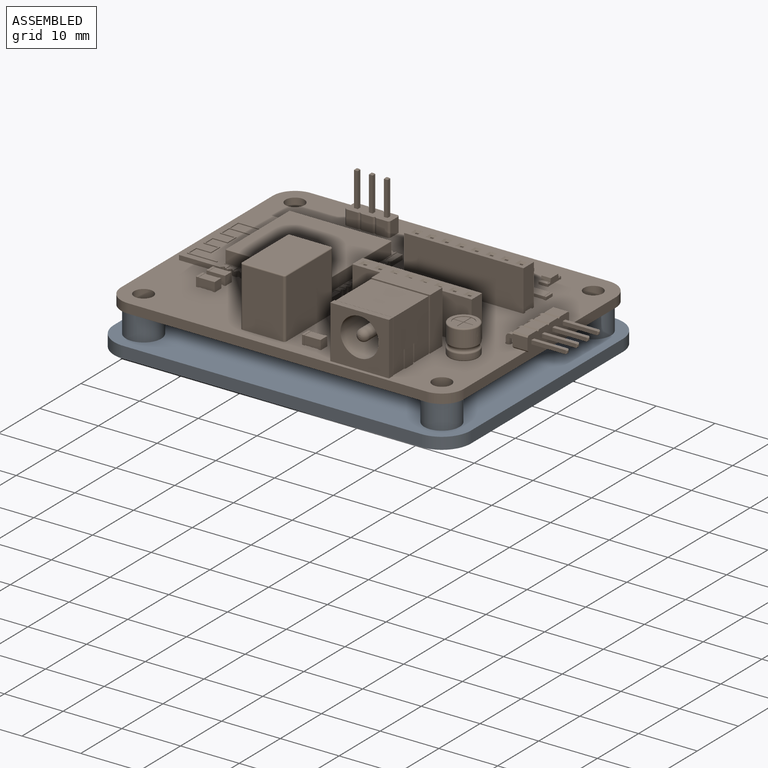
[diagram: assembled view]
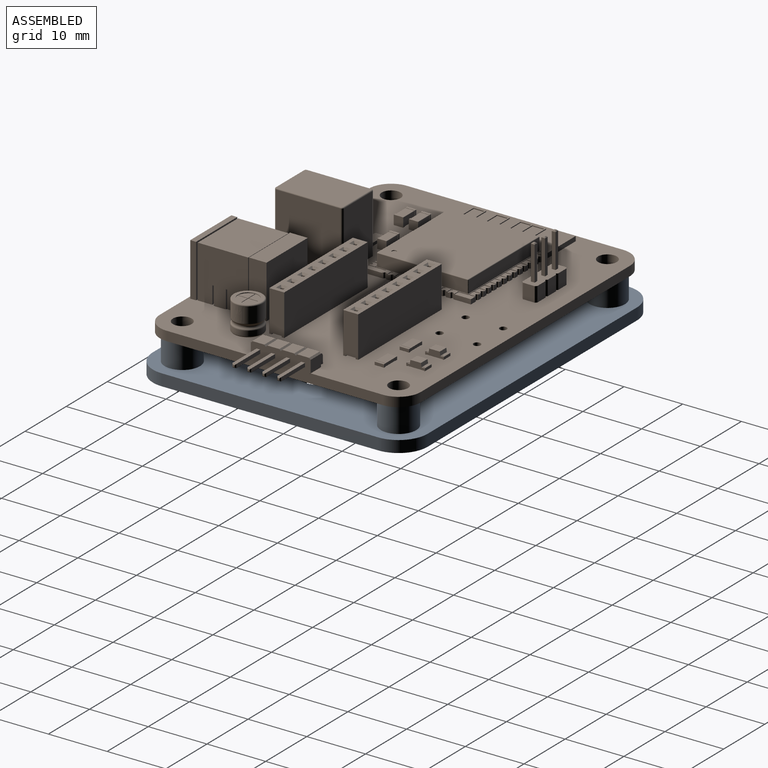
[diagram: assembled view, second angle]
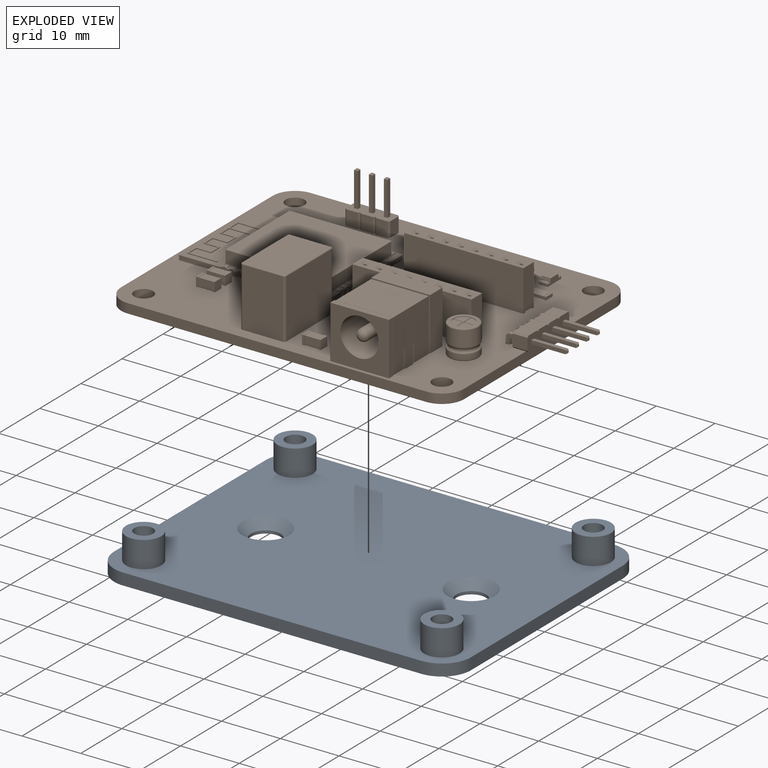
[diagram: exploded view]
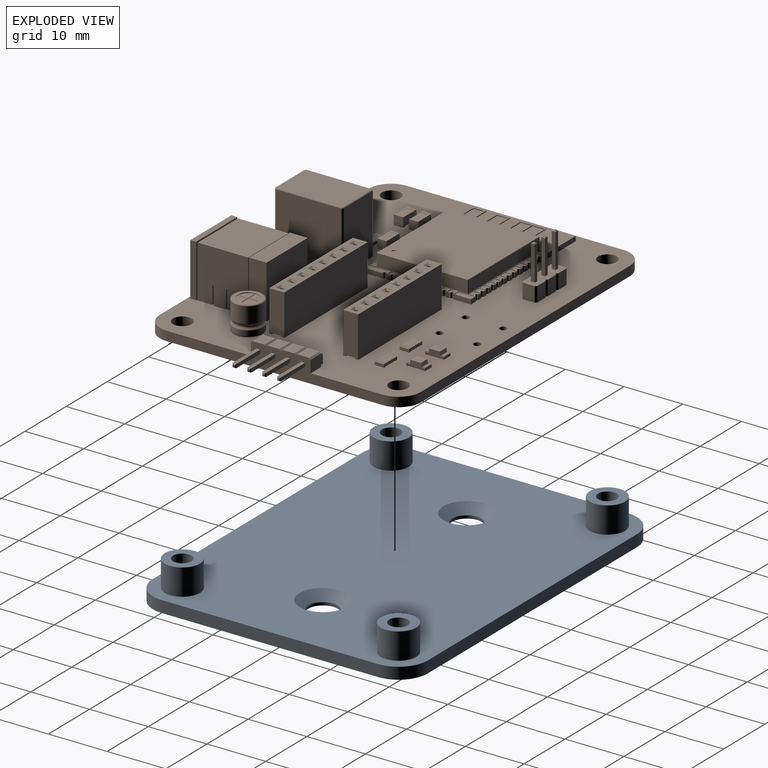
[diagram: exploded view, second angle]
FCSTD DOCUMENT  (FreeCAD 0.20RUnknown)
Label: pcb mount
License: All rights reserved
LicenseURL: http://en.wikipedia.org/wiki/All_rights_reserved
objects: Part::Feature×12, App::Part×11, App::Link×8, PartDesign::SubShapeBinder×2, Sketcher::SketchObject×2, PartDesign::Pad×2, Part::Compound2×1, PartDesign::Chamfer×1, PartDesign::Body×1
note: 26 computed .brp shape members not serialized (recipe doc carries the construction recipe); baked Part::Feature solids carry a one-line shape summary decoded from their .brp

FEATURE [Part::Feature] Solid  label="SOLID"
  TreeRank = 15
  shape: bbox 2.54 x 20.32 x 10.1 mm, 258 faces (baked)
FEATURE [App::Part] Part  label="PinSocket_1x08_P2.54mm_Vertical"
  ExportMode = 1
  Group = -> [Solid]
  Origin = -> Origin
  Placement = pos=(2.794,-4.826,1.65) rot=(0,0,1;1.5708rad)
  TreeRank = 17
  _ExportChildren = -> [Solid]
  _GroupVersion = 1
FEATURE [App::Link] Link  label="PinSocket_1x08_P2.54mm_Vertical"
  AutoLinkLabel = true
  AutoPlacement = true
  LinkPlacement = pos=(2.794,7.774,1.65) rot=(0,0,1;1.5708rad)
  LinkedObject = -> Part
  Placement = pos=(2.794,7.774,1.65) rot=(0,0,1;1.5708rad)
  SyncGroupVisibility = false
  TreeRank = 18
  _LinkVersion = 1
FEATURE [Part::Feature] Solid001  label="SOLID"
  TreeRank = 19
  shape: bbox 3.2 x 1.6 x 1.6 mm, 28 faces (baked)
FEATURE [App::Part] Part001  label="C_1206_3216Metric"
  ExportMode = 1
  Group = -> [Solid001]
  Origin = -> Origin001
  Placement = pos=(4.0009,-18.806,1.65) rot=(0,0,1;0rad)
  TreeRank = 21
  _ExportChildren = -> [Solid001]
  _GroupVersion = 1
FEATURE [Part::Feature] Solid002  label="SOLID"
  TreeRank = 22
  shape: bbox 3.2 x 1.6 x 0.55 mm, 26 faces (baked)
FEATURE [App::Part] Part002  label="R_1206_3216Metric"
  ExportMode = 1
  Group = -> [Solid002]
  Origin = -> Origin002
  Placement = pos=(20.32,12.69,1.65) rot=(0,0,1;0rad)
  TreeRank = 24
  _ExportChildren = -> [Solid002]
  _GroupVersion = 1
FEATURE [App::Link] Link001  label="C_1206_3216Metric"
  AutoLinkLabel = true
  AutoPlacement = true
  LinkPlacement = pos=(4.1025,-10.17,1.65) rot=(0,0,1;3.14159rad)
  LinkedObject = -> Part001
  Placement = pos=(4.1025,-10.17,1.65) rot=(0,0,1;3.14159rad)
  SyncGroupVisibility = false
  TreeRank = 25
  _LinkVersion = 1
FEATURE [Part::Feature] Solid003  label="Unnamed"
  TreeRank = 26
  shape: bbox 9.8 x 8.6 x 11.9 mm, 54 faces (baked)
FEATURE [Part::Feature] Solid004  label="Unnamed"
  TreeRank = 27
  shape: bbox 11.5 x 13 x 13.63 mm, 42 faces (baked)
FEATURE [Part::Compound2] Compound  label="COMPOUND"
  Links = -> [Solid003,Solid004]
  TreeRank = 28
FEATURE [App::Part] Part003  label="BarrelJack_CUI_PJ-063AH_Horizontal"
  ExportMode = 1
  Group = -> [Compound,Solid003,Solid004]
  Origin = -> Origin003
  Placement = pos=(13.716,-9.75,1.65) rot=(0,0,1;0rad)
  TreeRank = 36
  _ExportChildren = -> [Compound]
  _GroupVersion = 1
FEATURE [Part::Feature] Solid005  label="SOLID"
  TreeRank = 37
  shape: bbox 18 x 25.5 x 3.1 mm, 751 faces (baked)
FEATURE [App::Part] Part004  label="ESP32-WROOM-32"
  ExportMode = 1
  Group = -> [Solid005]
  Origin = -> Origin004
  Placement = pos=(-11.9196,2.4378,1.65) rot=(0,0,1;1.5708rad)
  TreeRank = 39
  _ExportChildren = -> [Solid005]
  _GroupVersion = 1
FEATURE [App::Link] Link002  label="C_1206_3216Metric"
  AutoLinkLabel = true
  AutoPlacement = true
  LinkPlacement = pos=(-19.0754,-9.0778,1.65) rot=(0,0,1;3.14159rad)
  LinkedObject = -> Part001
  Placement = pos=(-19.0754,-9.0778,1.65) rot=(0,0,1;3.14159rad)
  SyncGroupVisibility = false
  TreeRank = 40
  _LinkVersion = 1
FEATURE [Part::Feature] Solid006  label="SOLID"
  TreeRank = 64
  shape: bbox 3.2 x 1.6 x 1.1 mm, 50 faces (baked)
FEATURE [App::Part] Part005  label="LED_1206_3216Metric"
  ExportMode = 1
  Group = -> [Solid006]
  Origin = -> Origin005
  Placement = pos=(18.796,17.262,1.65) rot=(0,0,-1;1.5708rad)
  TreeRank = 66
  _ExportChildren = -> [Solid006]
  _GroupVersion = 1
FEATURE [Part::Feature] Solid007  label="SOLID"
  TreeRank = 67
  shape: bbox 7.112 x 7.934 x 7 mm, 49 faces (baked)
FEATURE [App::Part] Part006  label="CP_Radial_D5.0mm_P2.50mm"
  ExportMode = 1
  Group = -> [Solid007]
  Origin = -> Origin006
  Placement = pos=(21.376,-9.154,1.65) rot=(0,0,1;0rad)
  TreeRank = 69
  _ExportChildren = -> [Solid007]
  _GroupVersion = 1
FEATURE [App::Link] Link003  label="LED_1206_3216Metric"
  AutoLinkLabel = true
  AutoPlacement = true
  LinkPlacement = pos=(14.224,17.262,1.65) rot=(0,0,-1;1.5708rad)
  LinkedObject = -> Part005
  Placement = pos=(14.224,17.262,1.65) rot=(0,0,-1;1.5708rad)
  SyncGroupVisibility = false
  TreeRank = 70
  _LinkVersion = 1
FEATURE [Part::Feature] Solid008  label="SOLID"
  TreeRank = 71
  shape: bbox 2.54 x 7.62 x 11.54 mm, 76 faces (baked)
FEATURE [App::Part] Part007  label="PinHeader_1x03_P2.54mm_Vertical"
  ExportMode = 1
  Group = -> [Solid008]
  Origin = -> Origin007
  Placement = pos=(-14.097,17.389,1.65) rot=(0,0,1;1.5708rad)
  TreeRank = 73
  _ExportChildren = -> [Solid008]
  _GroupVersion = 1
FEATURE [App::Link] Link004  label="C_1206_3216Metric"
  AutoLinkLabel = true
  AutoPlacement = true
  LinkPlacement = pos=(-19.0754,-11.6178,1.65) rot=(0,0,1;3.14159rad)
  LinkedObject = -> Part001
  Placement = pos=(-19.0754,-11.6178,1.65) rot=(0,0,1;3.14159rad)
  SyncGroupVisibility = false
  TreeRank = 74
  _LinkVersion = 1
FEATURE [App::Link] Link005  label="R_1206_3216Metric"
  AutoLinkLabel = true
  AutoPlacement = true
  LinkPlacement = pos=(14.224,12.69,1.65) rot=(0,0,1;0rad)
  LinkedObject = -> Part002
  Placement = pos=(14.224,12.69,1.65) rot=(0,0,1;0rad)
  SyncGroupVisibility = false
  TreeRank = 75
  _LinkVersion = 1
FEATURE [App::Link] Link006  label="R_1206_3216Metric"
  AutoLinkLabel = true
  AutoPlacement = true
  LinkPlacement = pos=(-11.303,-11.567,1.65) rot=(0,0,1;3.14159rad)
  LinkedObject = -> Part002
  Placement = pos=(-11.303,-11.567,1.65) rot=(0,0,1;3.14159rad)
  SyncGroupVisibility = false
  TreeRank = 76
  _LinkVersion = 1
FEATURE [Part::Feature] Solid009  label="SOLID"
  TreeRank = 77
  shape: bbox 10.36 x 10.16 x 5.54 mm, 112 faces (baked)
FEATURE [App::Part] Part008  label="PinHeader_1x04_P2.54mm_Horizontal"
  ExportMode = 1
  Group = -> [Solid009]
  Origin = -> Origin008
  Placement = pos=(25.6503,5.1641,1.65) rot=(0,0,1;0rad)
  TreeRank = 79
  _ExportChildren = -> [Solid009]
  _GroupVersion = 1
FEATURE [Part::Feature] Solid010  label="SOLID"
  TreeRank = 80
  shape: bbox 11.7 x 7.6 x 14.2 mm, 27 faces (baked)
FEATURE [App::Part] Part009  label="Converter_DCDC_TRACO_TSR-1_THT"
  ExportMode = 1
  Group = -> [Solid010]
  Origin = -> Origin009
  Placement = pos=(-1.8735,-17.1999,1.65) rot=(0,0,1;1.5708rad)
  TreeRank = 82
  _ExportChildren = -> [Solid010]
  _GroupVersion = 1
FEATURE [App::Link] Link007  label="C_1206_3216Metric"
  AutoLinkLabel = true
  AutoPlacement = true
  LinkPlacement = pos=(-11.303,-9.027,1.65) rot=(0,0,1;0rad)
  LinkedObject = -> Part001
  Placement = pos=(-11.303,-9.027,1.65) rot=(0,0,1;0rad)
  SyncGroupVisibility = false
  TreeRank = 83
  _LinkVersion = 1
FEATURE [Part::Feature] Solid011  label="pcb PCB"
  TreeRank = 84
  shape: bbox 58.42 x 44.45 x 1.6 mm, 63 faces (baked)
FEATURE [App::Part] Part010  label="pcb 1"
  ExportMode = 1
  Group = -> [Part,Link,Part001,Part002,Link001,Part003,Part004,Link002,Part005,Part006,Link003,Part007,Link004,Link005,Link006,Part008,Part009,Link007,Solid011]
  Origin = -> Origin010
  Placement = pos=(0,0,6.5) rot=(0,0,1;0rad)
  TreeRank = 86
  _ExportChildren = -> [Part,Link,Part001,Part002,Link001,Part003,Part004,Link002,Part005,Part006,Link003,Part007,Link004,Link005,Link006,Part008,Part009,Link007,Solid011]
  _GroupVersion = 1
FEATURE [PartDesign::SubShapeBinder] Binder  label="Binder(pcb PCB)..."
  BindCopyOnChange = 0
  BindMode = 0
  ClaimChildren = false
  Context = -> Body [Binder.]
  FillStyle = 0
  Fuse = false
  MakeFace = true
  PartialLoad = false
  Relative = true
  Support = -> [Part010[Solid011.Edge16,Solid011.Edge33,Solid011.Edge50,Solid011.Edge68]]
  TreeRank = 98
  _Version = 8
FEATURE [Sketcher::SketchObject] Sketch
  ExternalGeometry = -> [Binder]
  FullyConstrained = false
  MapMode = 5
  Support = -> [XY_Plane]
  TreeRank = 97
  sketch-geometry (12):
    g0: ArcOfCircle CenterX=-25.4 CenterY=18.415 CenterZ=0 NormalX=0 NormalY=0 NormalZ=1 AngleXU=0 Radius=5 StartAngle=1.5708 EndAngle=3.14159
    g1: LineSegment StartX=-25.4 StartY=23.415 StartZ=0 EndX=25.4 EndY=23.415 EndZ=0
    g2: ArcOfCircle CenterX=25.4 CenterY=18.415 CenterZ=0 NormalX=0 NormalY=0 NormalZ=1 AngleXU=0 Radius=5 StartAngle=0 EndAngle=1.5708
    g3: ArcOfCircle CenterX=25.4 CenterY=-18.415 CenterZ=0 NormalX=0 NormalY=0 NormalZ=1 AngleXU=0 Radius=5 StartAngle=4.71239 EndAngle=6.28319
    g4: LineSegment StartX=25.4 StartY=-23.415 StartZ=0 EndX=-25.4 EndY=-23.415 EndZ=0
    g5: ArcOfCircle CenterX=-25.4 CenterY=-18.415 CenterZ=0 NormalX=0 NormalY=0 NormalZ=1 AngleXU=0 Radius=5 StartAngle=3.14159 EndAngle=4.71239
    g6: GeomPoint [constr] X=-30.4 Y=23.415 Z=0
    g7: GeomPoint [constr] X=30.4 Y=-23.415 Z=0
    g8: LineSegment StartX=-30.4 StartY=18.415 StartZ=0 EndX=-30.4 EndY=-18.415 EndZ=0
    g9: LineSegment StartX=30.4 StartY=18.415 StartZ=0 EndX=30.4 EndY=-18.415 EndZ=0
    g10: Circle CenterX=-17.5 CenterY=0 CenterZ=0 NormalX=0 NormalY=0 NormalZ=1 AngleXU=0 Radius=2.5
    g11: Circle CenterX=17.5 CenterY=0 CenterZ=0 NormalX=0 NormalY=0 NormalZ=1 AngleXU=0 Radius=2.5
  constraints (27):
    c: Tangent(g0,g1) = 1.5708
    c: Tangent(g1,g2) = 1.5708
    c: Tangent(g3,g4) = 1.5708
    c: Tangent(g4,g5) = 1.5708
    c: Horizontal(g1)
    c: Horizontal(g4)
    c: PointOnObject(g6,g1)
    c: PointOnObject(g7,g4)
    c: Coincident(g0,g-4)
    c: Coincident(g5,g-5)
    c: Coincident(g3,g-6)
    c: Distance(g2,g2) = 5
    c: Coincident(g2,g-3)
    c: Horizontal(g0,g0)
    c: Horizontal(g2,g2)
    c: Horizontal(g3,g3)
    c: Horizontal(g5,g5)
    c: Coincident(g8,g0)
    c: Coincident(g8,g5)
    c: Vertical(g8)
    c: Coincident(g9,g2)
    c: Coincident(g9,g3)
    c: PointOnObject(g10,g-1)
    c: Diameter(g10) = 5
    c: Diameter(g11) = 5
    c: Symmetric(g10,g11,g-1)
    c: Distance(g11,g10) = 35
FEATURE [PartDesign::Pad] Pad
  AddSubType = 0
  AlongSketchNormal = false
  CheckUpToFaceLimits = true
  ClaimChildren = false
  Direction = (0,0,1)
  Fit = 0
  FitJoin = 0
  InnerFit = 0
  InnerFitJoin = 0
  InnerTaperAngle = 0
  InnerTaperAngleRev = 0
  Length = 2
  Length2 = 100
  Linearize = true
  NewSolid = false
  Profile = -> Sketch
  Suppress = false
  TreeRank = 99
  Type = 0
  _ProfileBasedVersion = 1
FEATURE [PartDesign::Chamfer] Chamfer
  AddSubType = 0
  Angle = 45
  Base = -> Pad [Edge30,Edge27]
  BaseFeature = -> Pad
  ChamferType = 0
  FlipDirection = false
  NewSolid = false
  Size = 1.5
  Size2 = 1
  SupportTransform = false
  Suppress = false
  TreeRank = 100
FEATURE [Sketcher::SketchObject] Sketch001
  ExternalGeometry = -> [Binder]
  FullyConstrained = true
  MapMode = 5
  Placement = pos=(0,0,2) rot=(0,0,1;0rad)
  TreeRank = 101
  sketch-geometry (8):
    g0: Circle CenterX=25.4 CenterY=18.415 CenterZ=0 NormalX=0 NormalY=0 NormalZ=1 AngleXU=0 Radius=1.6
    g1: Circle CenterX=-25.4 CenterY=18.415 CenterZ=0 NormalX=0 NormalY=0 NormalZ=1 AngleXU=0 Radius=1.6
    g2: Circle CenterX=-25.4 CenterY=-18.415 CenterZ=0 NormalX=0 NormalY=0 NormalZ=1 AngleXU=0 Radius=1.6
    g3: Circle CenterX=25.4 CenterY=-18.415 CenterZ=0 NormalX=0 NormalY=0 NormalZ=1 AngleXU=0 Radius=1.6
    g4: Circle CenterX=-25.4 CenterY=18.415 CenterZ=0 NormalX=0 NormalY=0 NormalZ=1 AngleXU=0 Radius=3
    g5: Circle CenterX=-25.4 CenterY=-18.415 CenterZ=0 NormalX=0 NormalY=0 NormalZ=1 AngleXU=0 Radius=3
    g6: Circle CenterX=25.4 CenterY=-18.415 CenterZ=0 NormalX=0 NormalY=0 NormalZ=1 AngleXU=0 Radius=3
    g7: Circle CenterX=25.4 CenterY=18.415 CenterZ=0 NormalX=0 NormalY=0 NormalZ=1 AngleXU=0 Radius=3
  constraints (16):
    c: Coincident(g0,g-5)
    c: Coincident(g1,g-4)
    c: Coincident(g2,g-3)
    c: Coincident(g3,g-6)
    c: Equal(g1,g-4)
    c: Equal(g2,g-3)
    c: Equal(g-6,g3)
    c: Equal(g0,g-5)
    c: Coincident(g4,g1)
    c: Diameter(g4) = 6
    c: Coincident(g5,g2)
    c: Coincident(g6,g3)
    c: Coincident(g7,g0)
    c: Equal(g7,g6)
    c: Equal(g6,g5)
    c: Equal(g5,g4)
FEATURE [PartDesign::SubShapeBinder] Import  label="Import(pcb PCB)"
  BindCopyOnChange = 0
  BindMode = 0
  ClaimChildren = false
  Context = -> Body [Import.]
  FillStyle = 0
  Fuse = false
  MakeFace = false
  PartialLoad = false
  Relative = true
  Support = -> [Part010[Solid011.Face4]]
  TreeRank = 103
  _Version = 8
FEATURE [PartDesign::Pad] Pad001
  AddSubType = 0
  AlongSketchNormal = false
  BaseFeature = -> Chamfer
  CheckUpToFaceLimits = true
  ClaimChildren = false
  Direction = (0,0,1)
  Fit = 0
  FitJoin = 0
  InnerFit = 0
  InnerFitJoin = 0
  InnerTaperAngle = 0
  InnerTaperAngleRev = 0
  Length = 10
  Length2 = 100
  Linearize = true
  NewSolid = false
  Profile = -> Sketch001
  Suppress = false
  TreeRank = 102
  Type = 3
  UpToFace = -> Import
  _ProfileBasedVersion = 1
FEATURE [PartDesign::Body] Body
  AutoGroupSolids = false
  ExportMode = 0
  Group = -> [Sketch,Binder,Pad,Chamfer,Sketch001,Pad001,Import]
  Origin = -> Origin011
  Tip = -> Pad001
  TreeRank = 96
  _ExportChildren = -> [Binder,Pad,Chamfer,Pad001,Import]
  _GroupVersion = 1
